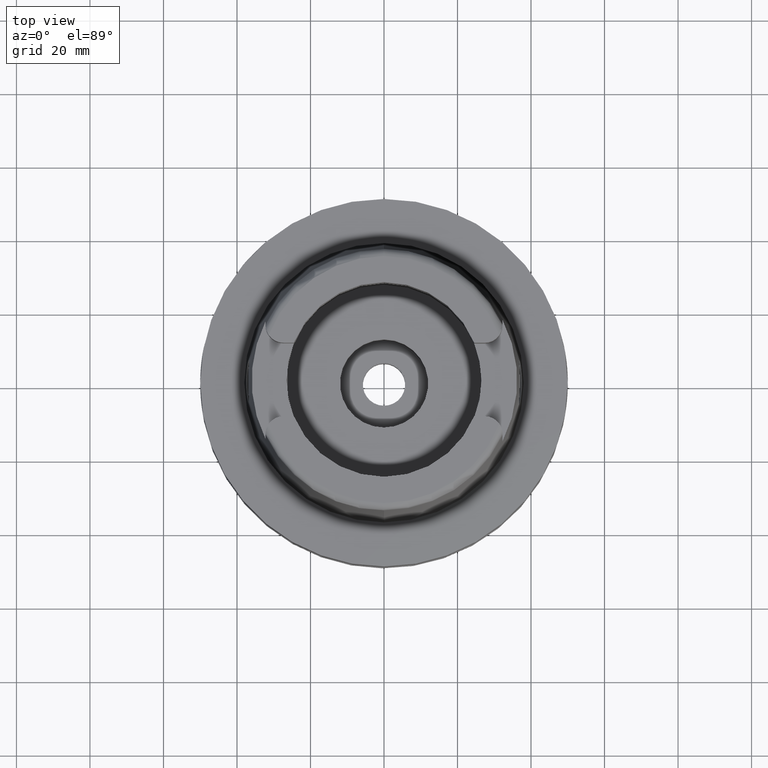
[diagram: clean part render]
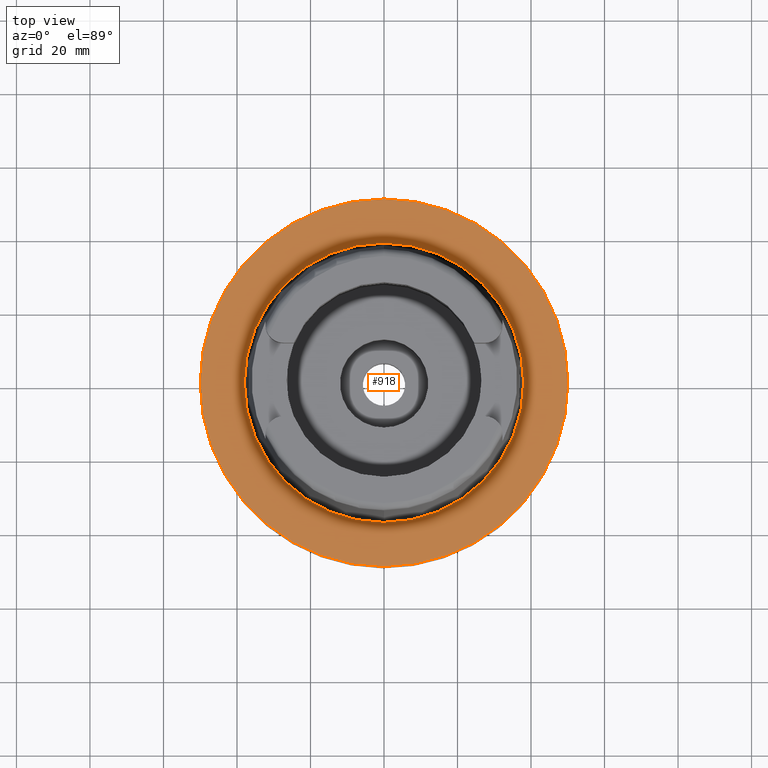
[diagram: same view with one face highlighted and labeled with its STEP entity id]
A machine part, top view. The second image highlights one B-rep face of the part: STEP entity #918.
In plain terms, the highlighted planar face has unit normal (0, 0, 1).
Its self-contained STEP definition (entity closure, byte-faithful):
#5 = VERTEX_POINT ( 'NONE', #3896 ) ;
#24 = DIRECTION ( 'NONE',  ( 0.0000000000000000000, 0.0000000000000000000, -1.000000000000000000 ) ) ;
#50 = DIRECTION ( 'NONE',  ( 0.0000000000000000000, 0.0000000000000000000, 1.000000000000000000 ) ) ;
#103 = EDGE_CURVE ( 'NONE', #1400, #5010, #4617, .T. ) ;
#415 = AXIS2_PLACEMENT_3D ( 'NONE', #3823, #3475, #4793 ) ;
#772 = PLANE ( 'NONE',  #3340 ) ;
#829 = CARTESIAN_POINT ( 'NONE',  ( 0.0000000000000000000, 50.00000000000000000, 1.421085471519999843E-14 ) ) ;
#918 = ADVANCED_FACE ( 'NONE', ( #1610, #2985 ), #772, .T. ) ;
#1089 = ORIENTED_EDGE ( 'NONE', *, *, #2965, .F. ) ;
#1271 = DIRECTION ( 'NONE',  ( 0.0000000000000000000, 0.0000000000000000000, 1.000000000000000000 ) ) ;
#1400 = VERTEX_POINT ( 'NONE', #2889 ) ;
#1579 = VERTEX_POINT ( 'NONE', #3428 ) ;
#1597 = EDGE_LOOP ( 'NONE', ( #2001, #1089 ) ) ;
#1610 = FACE_OUTER_BOUND ( 'NONE', #5298, .T. ) ;
#1662 = ORIENTED_EDGE ( 'NONE', *, *, #4221, .F. ) ;
#1744 = DIRECTION ( 'NONE',  ( 0.0000000000000000000, 1.000000000000000000, 0.0000000000000000000 ) ) ;
#1955 = AXIS2_PLACEMENT_3D ( 'NONE', #3984, #50, #4488 ) ;
#2001 = ORIENTED_EDGE ( 'NONE', *, *, #5224, .F. ) ;
#2016 = CARTESIAN_POINT ( 'NONE',  ( 0.0000000000000000000, 0.0000000000000000000, 1.421085471519999843E-14 ) ) ;
#2583 = CIRCLE ( 'NONE', #1955, 38.00001658251999714 ) ;
#2850 = CIRCLE ( 'NONE', #415, 38.00001658251999714 ) ;
#2854 = AXIS2_PLACEMENT_3D ( 'NONE', #5283, #24, #1744 ) ;
#2889 = CARTESIAN_POINT ( 'NONE',  ( 0.0000000000000000000, -50.00000000000000000, 1.421085471519999843E-14 ) ) ;
#2965 = EDGE_CURVE ( 'NONE', #1579, #5, #2850, .T. ) ;
#2985 = FACE_BOUND ( 'NONE', #1597, .T. ) ;
#3340 = AXIS2_PLACEMENT_3D ( 'NONE', #4735, #1271, #4274 ) ;
#3424 = ORIENTED_EDGE ( 'NONE', *, *, #103, .F. ) ;
#3428 = CARTESIAN_POINT ( 'NONE',  ( 0.0000000000000000000, -38.00001658251999714, 6.892264536873000076E-13 ) ) ;
#3475 = DIRECTION ( 'NONE',  ( 0.0000000000000000000, 0.0000000000000000000, 1.000000000000000000 ) ) ;
#3772 = DIRECTION ( 'NONE',  ( 0.0000000000000000000, -1.000000000000000000, 0.0000000000000000000 ) ) ;
#3803 = AXIS2_PLACEMENT_3D ( 'NONE', #2016, #4658, #3772 ) ;
#3823 = CARTESIAN_POINT ( 'NONE',  ( 0.0000000000000000000, 0.0000000000000000000, 1.023181539494999863E-12 ) ) ;
#3896 = CARTESIAN_POINT ( 'NONE',  ( 0.0000000000000000000, 38.00001658251999714, 1.023181539494999863E-12 ) ) ;
#3984 = CARTESIAN_POINT ( 'NONE',  ( 0.0000000000000000000, 0.0000000000000000000, 1.023181539494999863E-12 ) ) ;
#4221 = EDGE_CURVE ( 'NONE', #5010, #1400, #5151, .T. ) ;
#4274 = DIRECTION ( 'NONE',  ( 1.000000000000000000, 0.0000000000000000000, 0.0000000000000000000 ) ) ;
#4488 = DIRECTION ( 'NONE',  ( 0.0000000000000000000, 1.000000000000000000, 0.0000000000000000000 ) ) ;
#4617 = CIRCLE ( 'NONE', #3803, 50.00000000000000000 ) ;
#4658 = DIRECTION ( 'NONE',  ( 0.0000000000000000000, 0.0000000000000000000, -1.000000000000000000 ) ) ;
#4735 = CARTESIAN_POINT ( 'NONE',  ( 0.0000000000000000000, 0.0000000000000000000, 1.421085471519999843E-14 ) ) ;
#4793 = DIRECTION ( 'NONE',  ( 0.0000000000000000000, -1.000000000000000000, 0.0000000000000000000 ) ) ;
#5010 = VERTEX_POINT ( 'NONE', #829 ) ;
#5151 = CIRCLE ( 'NONE', #2854, 50.00000000000000000 ) ;
#5224 = EDGE_CURVE ( 'NONE', #5, #1579, #2583, .T. ) ;
#5283 = CARTESIAN_POINT ( 'NONE',  ( 0.0000000000000000000, 0.0000000000000000000, 1.421085471519999843E-14 ) ) ;
#5298 = EDGE_LOOP ( 'NONE', ( #1662, #3424 ) ) ;